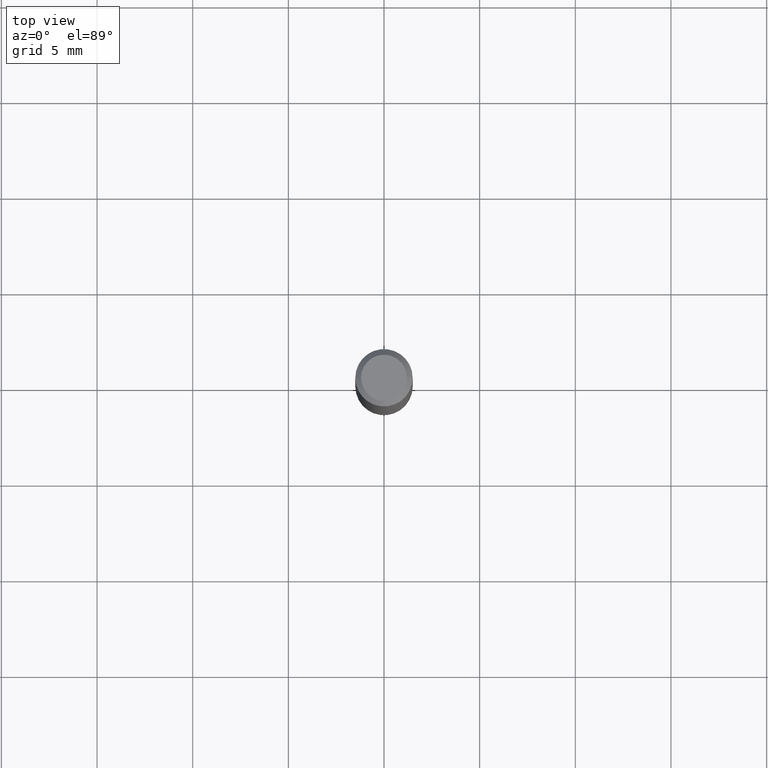
[diagram: clean part render]
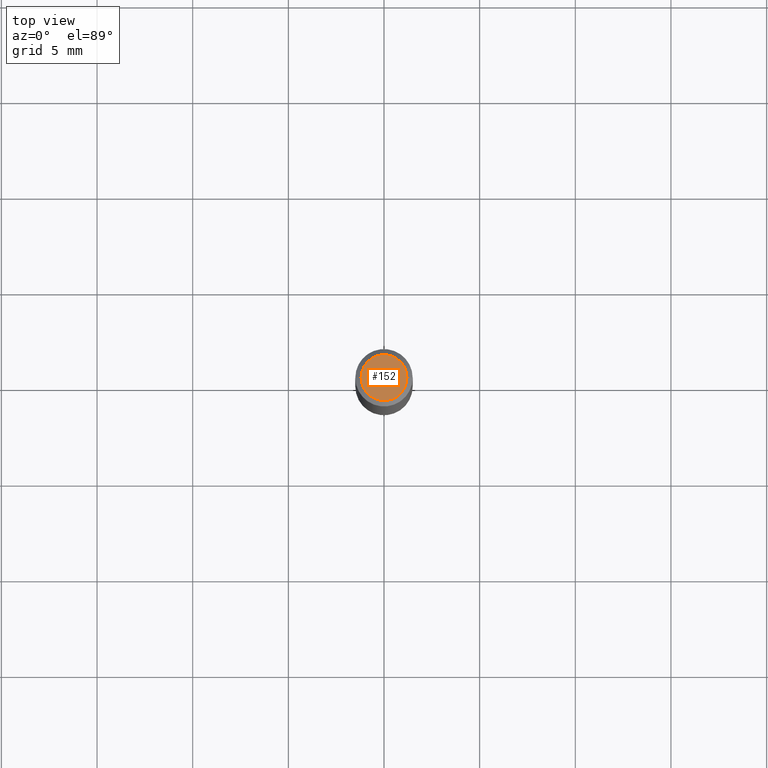
[diagram: same view with one face highlighted and labeled with its STEP entity id]
A machine part, top view. The second image highlights one B-rep face of the part: STEP entity #152.
In plain terms, the highlighted planar face has unit normal (0, -0, -1).
Its self-contained STEP definition (entity closure, byte-faithful):
#3 = VERTEX_POINT ( 'NONE', #79 ) ;
#15 = DIRECTION ( 'NONE',  ( 1.000000000000000000, -6.982962677686266711E-15, 4.876185090822587894E-29 ) ) ;
#18 = ORIENTED_EDGE ( 'NONE', *, *, #149, .T. ) ;
#79 = CARTESIAN_POINT ( 'NONE',  ( 0.04724000000000000421, -3.852183633974369345E-16, -3.380025165621689721E-19 ) ) ;
#106 = AXIS2_PLACEMENT_3D ( 'NONE', #139, #188, #445 ) ;
#122 = DIRECTION ( 'NONE',  ( -2.445468806185136597E-29, 3.491481338843145583E-15, 1.000000000000000000 ) ) ;
#128 = CARTESIAN_POINT ( 'NONE',  ( -0.04724000000000000421, 3.504923541997677355E-16, -3.380025165670481712E-19 ) ) ;
#139 = CARTESIAN_POINT ( 'NONE',  ( 8.265746106709734507E-48, -1.180129479067563789E-33, -3.380025165646692144E-19 ) ) ;
#149 = EDGE_CURVE ( 'NONE', #3, #340, #204, .T. ) ;
#152 = ADVANCED_FACE ( 'NONE', ( #231 ), #385, .F. ) ;
#166 = EDGE_LOOP ( 'NONE', ( #246, #18 ) ) ;
#188 = DIRECTION ( 'NONE',  ( -2.445468806185136597E-29, 3.491481338843145583E-15, 1.000000000000000000 ) ) ;
#204 = CIRCLE ( 'NONE', #274, 0.04724000000000000421 ) ;
#231 = FACE_OUTER_BOUND ( 'NONE', #166, .T. ) ;
#246 = ORIENTED_EDGE ( 'NONE', *, *, #490, .T. ) ;
#273 = DIRECTION ( 'NONE',  ( 2.438088387897960049E-29, -3.491481338843145188E-15, -1.000000000000000000 ) ) ;
#274 = AXIS2_PLACEMENT_3D ( 'NONE', #460, #122, #15 ) ;
#280 = DIRECTION ( 'NONE',  ( -1.000000000000000000, 6.982962677686265922E-15, -4.876176775795935793E-29 ) ) ;
#340 = VERTEX_POINT ( 'NONE', #128 ) ;
#385 = PLANE ( 'NONE',  #439 ) ;
#395 = CIRCLE ( 'NONE', #106, 0.04724000000000000421 ) ;
#429 = CARTESIAN_POINT ( 'NONE',  ( 4.132873053354867254E-48, -5.900647395337818946E-34, -1.690012582823346072E-19 ) ) ;
#439 = AXIS2_PLACEMENT_3D ( 'NONE', #429, #273, #280 ) ;
#445 = DIRECTION ( 'NONE',  ( 1.000000000000000000, -6.982962677686266711E-15, 4.876185090822587894E-29 ) ) ;
#460 = CARTESIAN_POINT ( 'NONE',  ( 8.265746106709734507E-48, -1.180129479067563789E-33, -3.380025165646692144E-19 ) ) ;
#490 = EDGE_CURVE ( 'NONE', #340, #3, #395, .T. ) ;